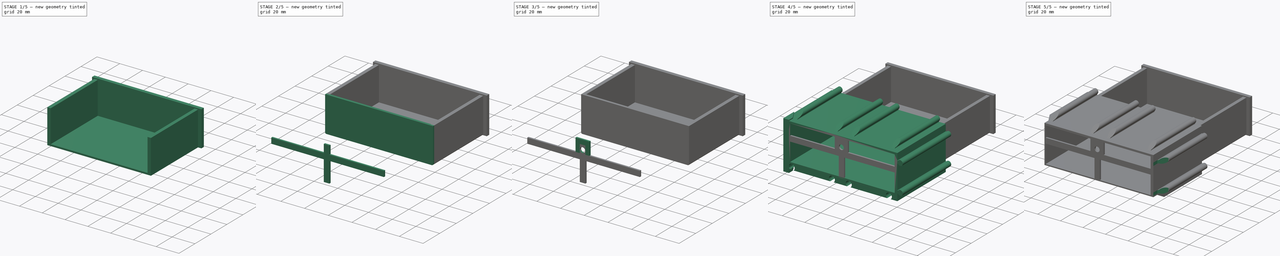
[diagram: build sequence overview — one tinted view per stage of 5, left to right]
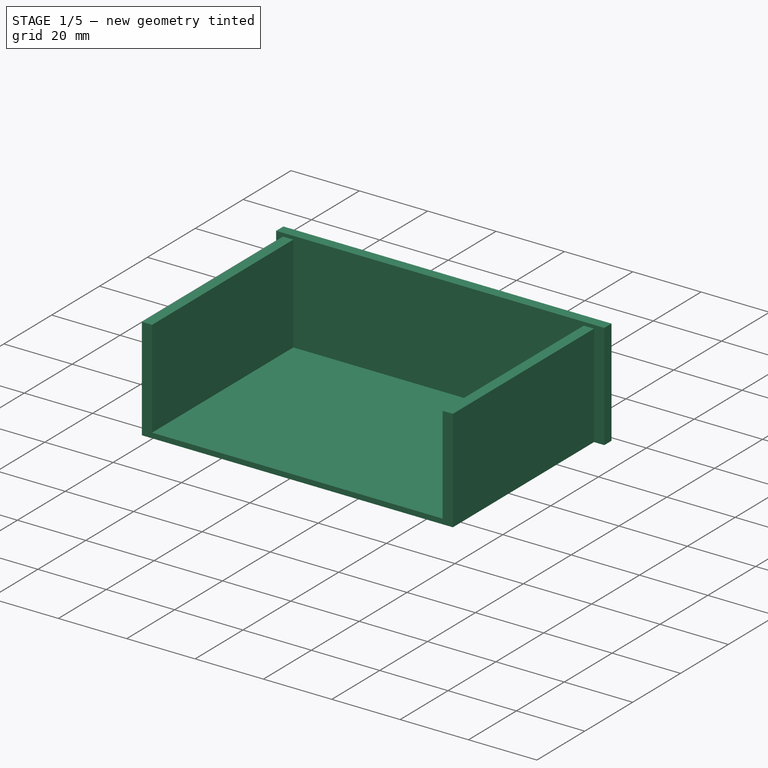
[diagram: stage 1 of 5 — iso view after this stage's code; geometry added in this stage tinted green]
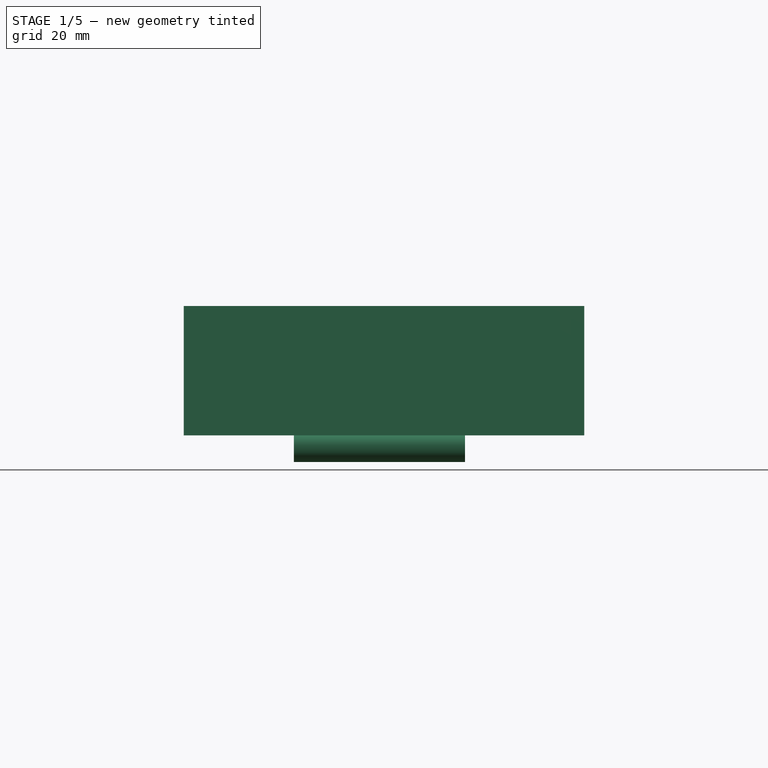
[diagram: stage 1 of 5 — front view after this stage's code; geometry added in this stage tinted green]
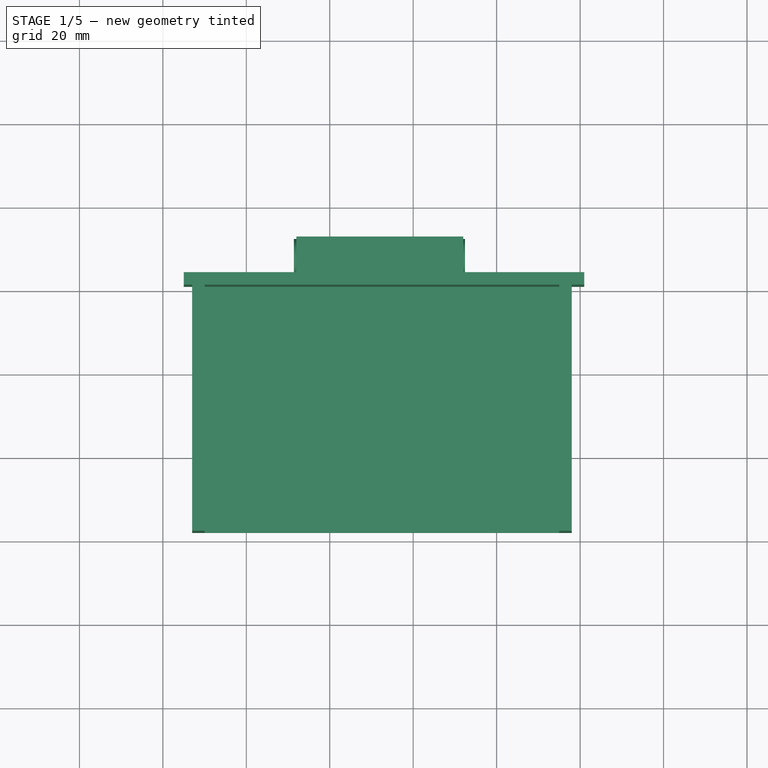
[diagram: stage 1 of 5 — top view after this stage's code; geometry added in this stage tinted green]
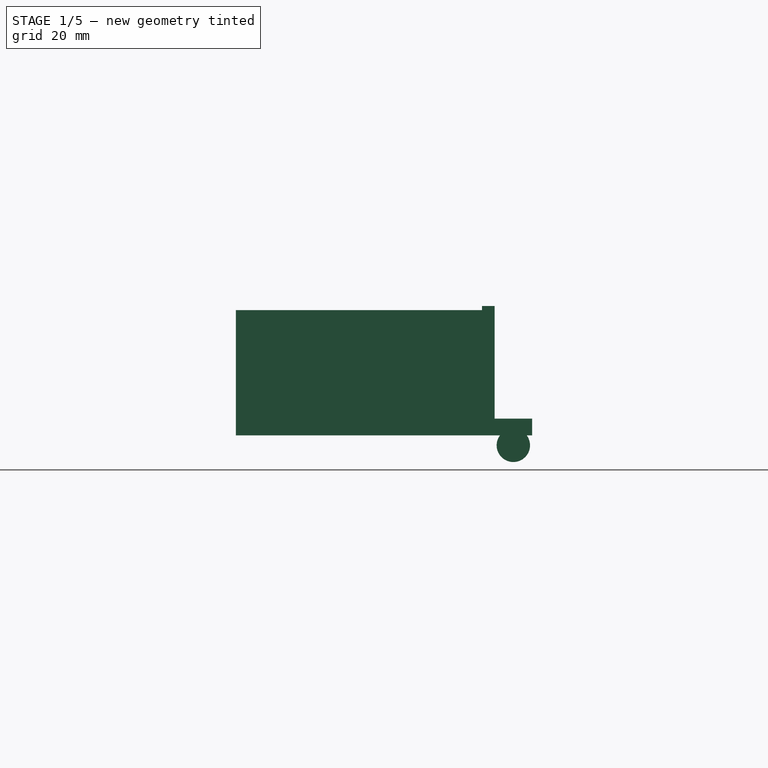
[diagram: stage 1 of 5 — right view after this stage's code; geometry added in this stage tinted green]
FCSTD DOCUMENT  (FreeCAD 0.18R4 (GitTag))
Label: базовый элемент 2x1
License: All rights reserved
LicenseURL: http://en.wikipedia.org/wiki/All_rights_reserved
objects: Part::Box×9, Part::Cut×7, Sketcher::SketchObject×6, Part::Extrusion×6, Part::MultiFuse×4, Part::Cylinder×3, Part::Fillet×1
note: 36 computed .brp shape members not serialized (recipe doc carries the construction recipe); baked Part::Feature solids carry a one-line shape summary decoded from their .brp

FEATURE [Part::Box] Box005  label="Куб005"
  AttacherType = Attacher::AttachEngine3D
  Height = 30
  Length = 3
  Placement = pos=(95,2,7) rot=(0,0,1;0rad)
  Width = 60
FEATURE [Part::Box] Box003  label="Куб003"
  AttacherType = Attacher::AttachEngine3D
  Height = 1.5
  Length = 88
  Placement = pos=(7,2,7) rot=(0,0,1;0rad)
  Width = 60
FEATURE [Part::Box] Box008  label="Куб008"
  AttacherType = Attacher::AttachEngine3D
  Height = 4
  Length = 40
  Placement = pos=(32,63,7) rot=(0,0,1;0rad)
  Width = 10
FEATURE [Part::Box] Box004  label="Куб004"
  AttacherType = Attacher::AttachEngine3D
  Height = 30
  Length = 3
  Placement = pos=(7,2,7) rot=(0,0,1;0rad)
  Width = 60
FEATURE [Part::Box] Box007  label="Куб007"
  AttacherType = Attacher::AttachEngine3D
  Height = 31
  Length = 96
  Placement = pos=(5,61,7) rot=(0,0,1;0rad)
  Width = 3
FEATURE [Part::Cylinder] Cylinder  label="Цилиндр"
  Angle = 360
  AttacherType = Attacher::AttachEngine3D
  Height = 41
  Placement = pos=(31.4,68.5,4.6) rot=(0,1,0;1.5708rad)
  Radius = 4
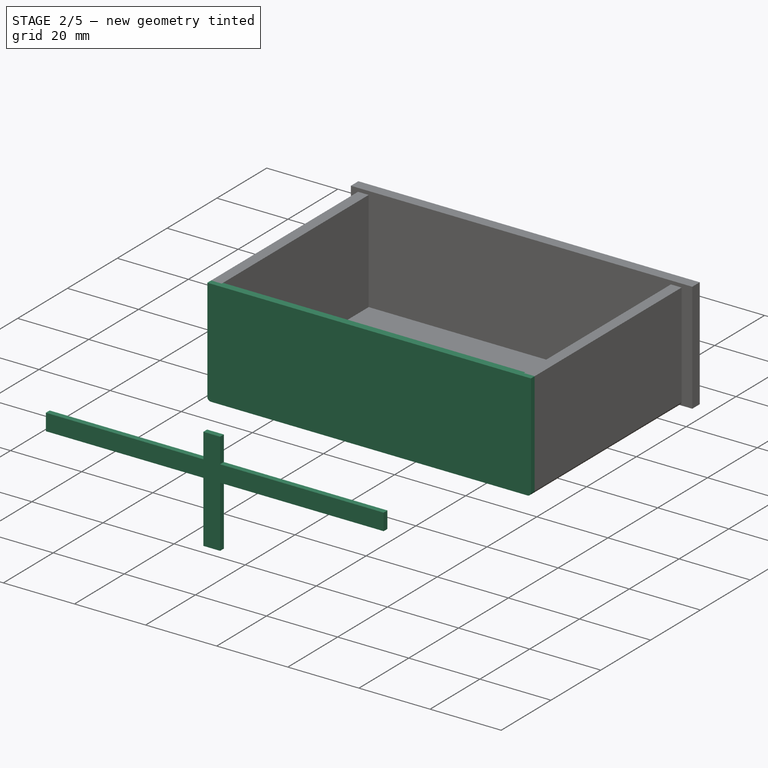
[diagram: stage 2 of 5 — iso view after this stage's code; geometry added in this stage tinted green]
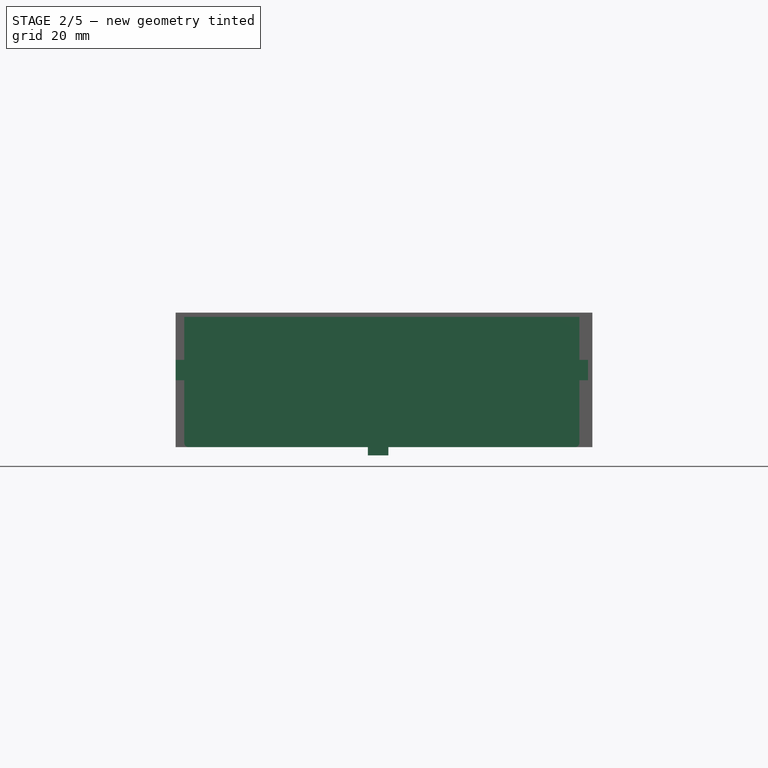
[diagram: stage 2 of 5 — front view after this stage's code; geometry added in this stage tinted green]
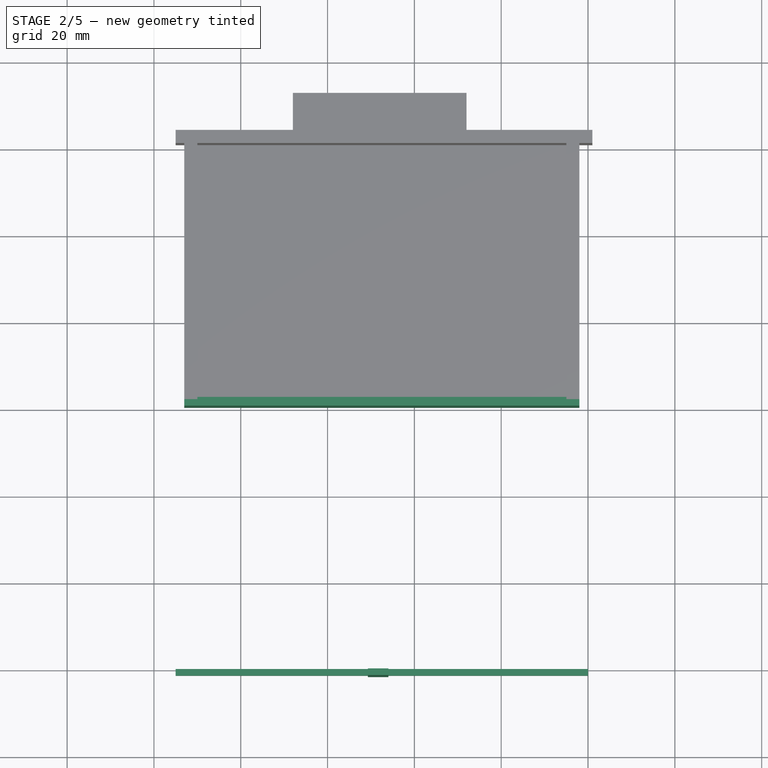
[diagram: stage 2 of 5 — top view after this stage's code; geometry added in this stage tinted green]
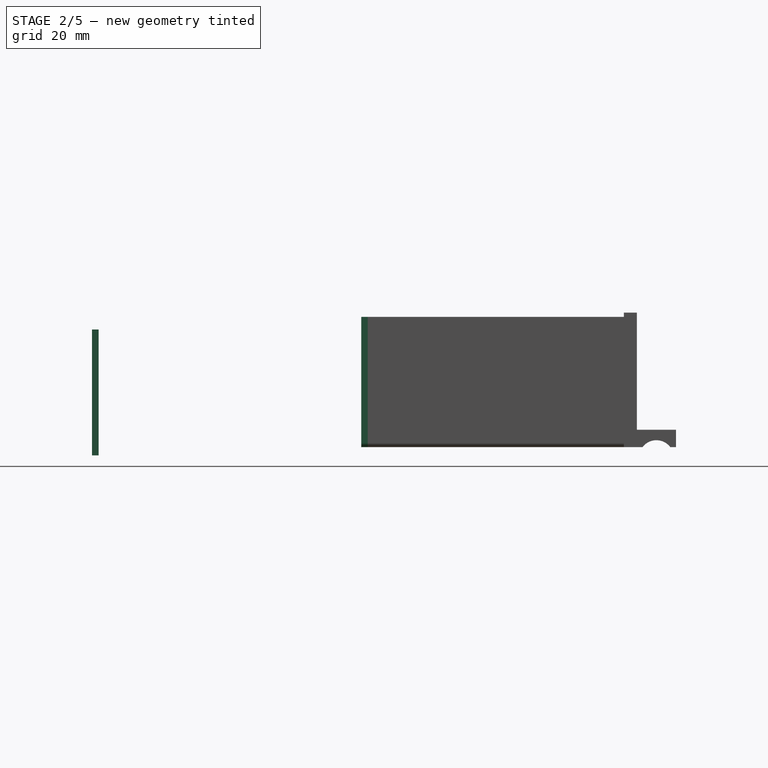
[diagram: stage 2 of 5 — right view after this stage's code; geometry added in this stage tinted green]
FEATURE [Part::Box] Box013  label="Куб013"
  AttacherType = Attacher::AttachEngine3D
  Height = 4.7
  Length = 29
  Placement = pos=(54,-61.5,5.1) rot=(0,-1,0;1.5708rad)
  Width = 1.5
FEATURE [Part::Box] Box014  label="Куб014"
  AttacherType = Attacher::AttachEngine3D
  Height = 4.7
  Length = 95
  Placement = pos=(5,-61.5,22.4) rot=(0,0,1;0rad)
  Width = 1.5
FEATURE [Part::Box] Box006  label="Куб006"
  AttacherType = Attacher::AttachEngine3D
  Height = 30
  Length = 91
  Placement = pos=(7,0.5,7) rot=(0,0,1;0rad)
  Width = 2
FEATURE [Part::MultiFuse] Fusion007
  Shapes = -> [Box006,Box004,Box003,Box005,Box007,Box008]
FEATURE [Part::Fillet] Fillet
  Base = -> Fusion007
  Edges = 6 edges r=1: [Edge4,Edge17,Edge21,Edge35,Edge41,Edge64]
FEATURE [Part::Cut] Cut006
  Base = -> Fillet
  Tool = -> Cylinder
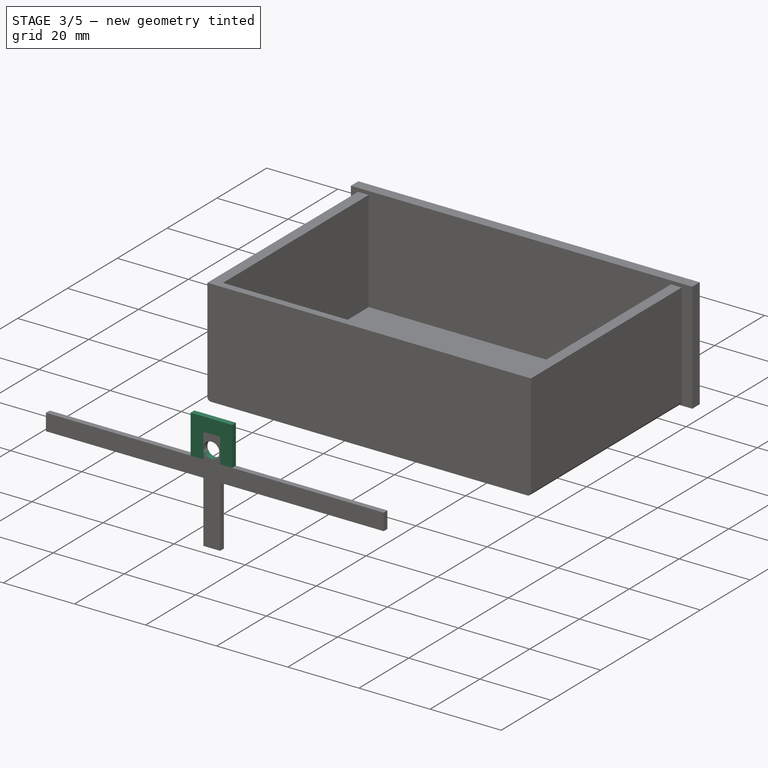
[diagram: stage 3 of 5 — iso view after this stage's code; geometry added in this stage tinted green]
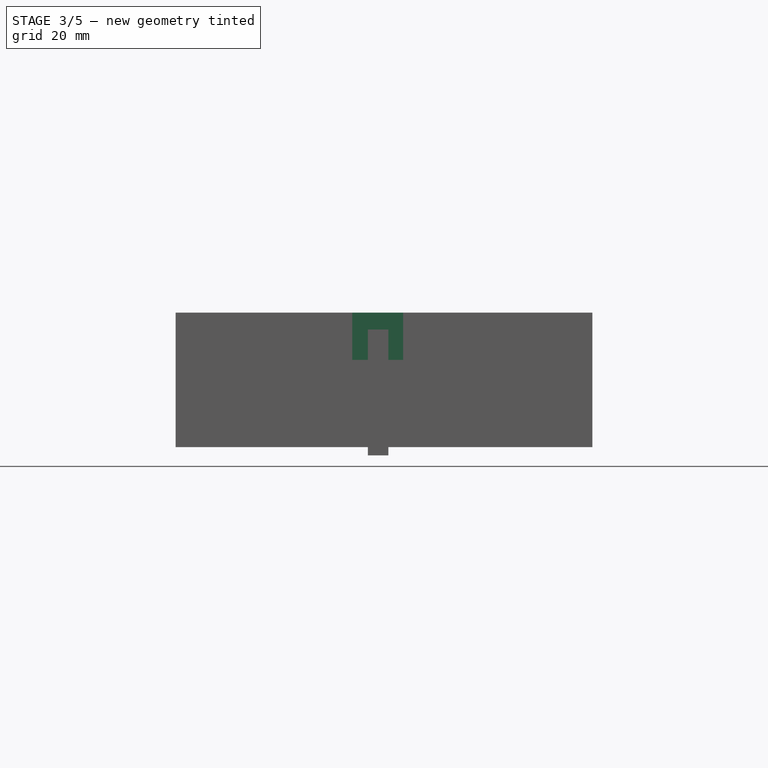
[diagram: stage 3 of 5 — front view after this stage's code; geometry added in this stage tinted green]
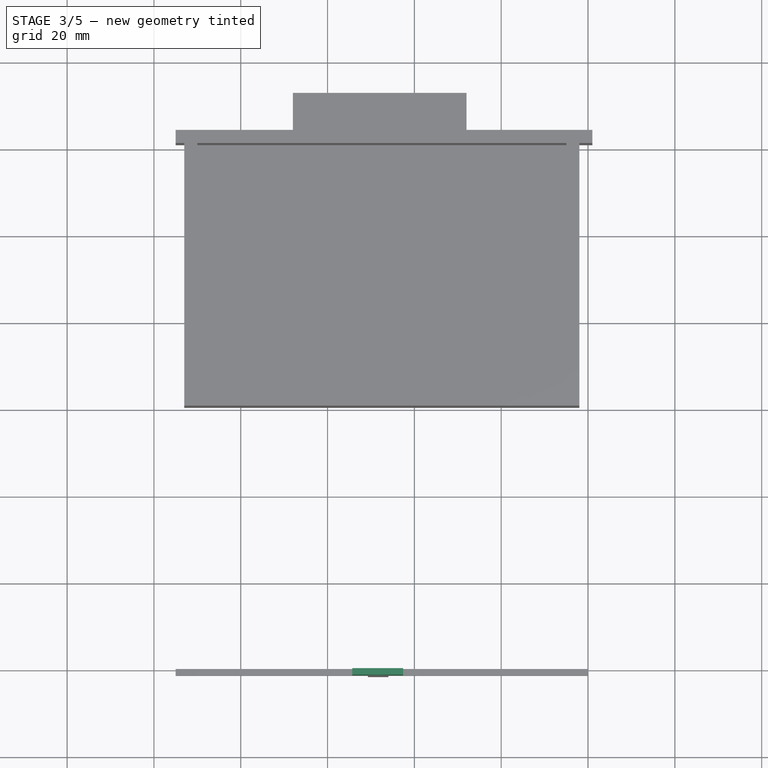
[diagram: stage 3 of 5 — top view after this stage's code; geometry added in this stage tinted green]
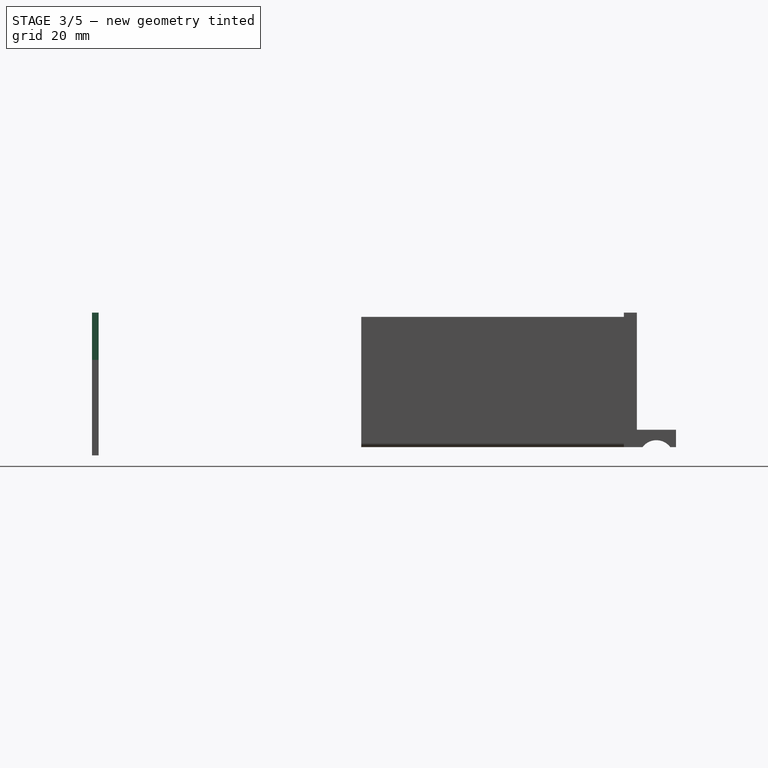
[diagram: stage 3 of 5 — right view after this stage's code; geometry added in this stage tinted green]
FEATURE [Part::Box] Box012  label="Куб012"
  AttacherType = Attacher::AttachEngine3D
  Height = 11.7
  Length = 13
  Placement = pos=(57.4,-61.5,25) rot=(0,-1,0;1.5708rad)
  Width = 1.5
FEATURE [Part::Cylinder] Cylinder004  label="Цилиндр004"
  Angle = 360
  AttacherType = Attacher::AttachEngine3D
  Height = 10
  Placement = pos=(26.2,-4,34) rot=(-1,0,0;1.5708rad)
  Radius = 2.2
FEATURE [Part::Cylinder] Cylinder005  label="Цилиндр005"
  Angle = 360
  AttacherType = Attacher::AttachEngine3D
  Height = 10
  Placement = pos=(26.2,3,34) rot=(-1,0,0;1.5708rad)
  Radius = 6
FEATURE [Part::MultiFuse] Fusion005
  Placement = pos=(25.4,-63,-4) rot=(0,0,1;0rad)
  Shapes = -> [Cylinder004,Cylinder005]
FEATURE [Part::MultiFuse] Fusion
  Shapes = -> [Box013,Box014,Box012]
FEATURE [Part::Cut] Cut005
  Base = -> Fusion
  Tool = -> Fusion005
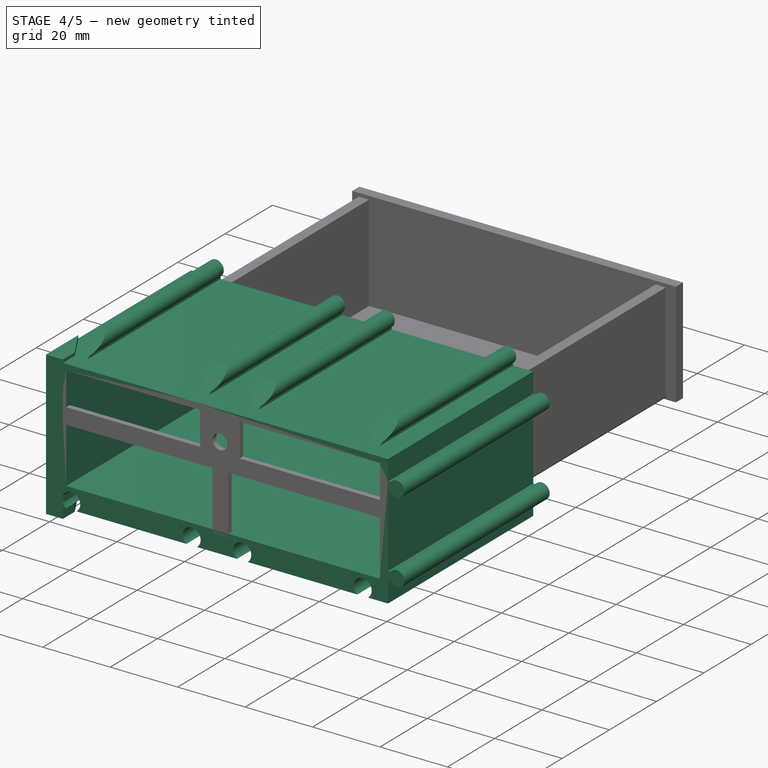
[diagram: stage 4 of 5 — iso view after this stage's code; geometry added in this stage tinted green]
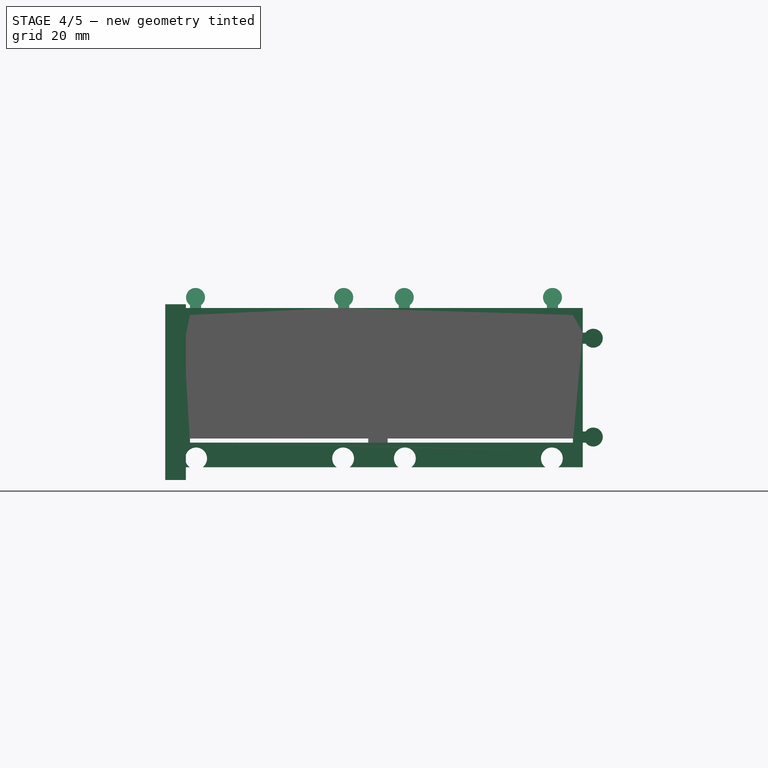
[diagram: stage 4 of 5 — front view after this stage's code; geometry added in this stage tinted green]
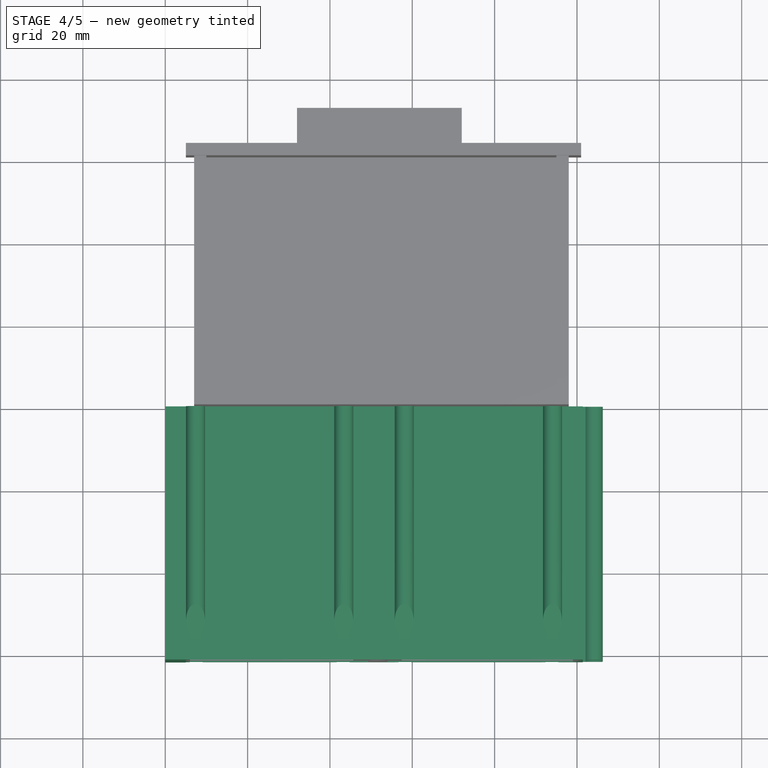
[diagram: stage 4 of 5 — top view after this stage's code; geometry added in this stage tinted green]
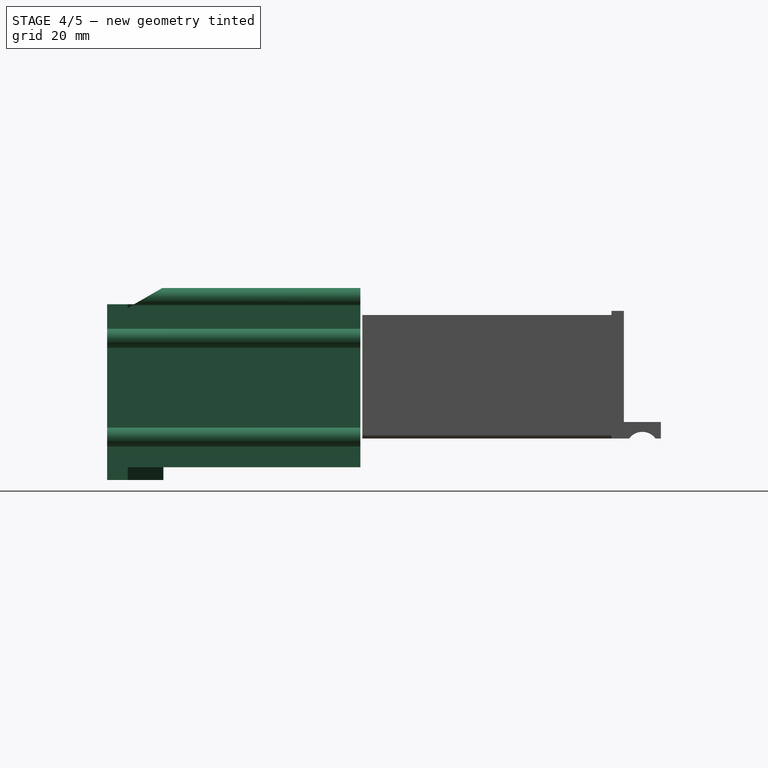
[diagram: stage 4 of 5 — right view after this stage's code; geometry added in this stage tinted green]
FEATURE [Sketcher::SketchObject] Sketch014
  Placement = pos=(0,0,0) rot=(1,0,0;1.5708rad)
  sketch-geometry (42):
    g0: LineSegment StartX=0 StartY=-4e-16 StartZ=0 EndX=0 EndY=5.95 EndZ=0
    g1: LineSegment StartX=0 StartY=9.05 StartZ=0 EndX=0 EndY=29.65 EndZ=0
    g2: LineSegment StartX=0 StartY=-4e-16 StartZ=0 EndX=5.95 EndY=-4e-16 EndZ=0
    g3: ArcOfCircle CenterX=2.14942 CenterY=7.5 CenterZ=0 NormalX=0 NormalY=0 NormalZ=1 AngleXU=0 Radius=2.65 StartAngle=3.76636 EndAngle=8.80001
    g4: ArcOfCircle CenterX=7.5 CenterY=2.14942 CenterZ=0 NormalX=0 NormalY=0 NormalZ=1 AngleXU=0 Radius=2.65 StartAngle=5.33715 EndAngle=10.3708
    g5: LineSegment StartX=9.05 StartY=9e-16 StartZ=0 EndX=41.65 EndY=9e-16 EndZ=0
    g6: ArcOfCircle CenterX=43.2 CenterY=2.14942 CenterZ=0 NormalX=0 NormalY=0 NormalZ=1 AngleXU=0 Radius=2.65 StartAngle=5.33715 EndAngle=10.3708
    g7: LineSegment StartX=44.75 StartY=0 StartZ=0 EndX=50.7 EndY=0 EndZ=0
    g8: LineSegment StartX=50.7 StartY=38.7 StartZ=0 EndX=44.7 EndY=38.7 EndZ=0
    g9: LineSegment StartX=44.7 StartY=38.7 StartZ=0 EndX=44.7 EndY=39.4 EndZ=0
    g10: LineSegment StartX=42 StartY=38.7 StartZ=0 EndX=42 EndY=39.4 EndZ=0
    g11: ArcOfCircle CenterX=43.35 CenterY=41.2621 CenterZ=0 NormalX=0 NormalY=0 NormalZ=1 AngleXU=0 Radius=2.3 StartAngle=5.33968 EndAngle=10.3683
    g12: ArcOfCircle CenterX=2.14942 CenterY=31.2 CenterZ=0 NormalX=0 NormalY=0 NormalZ=1 AngleXU=0 Radius=2.65 StartAngle=3.76636 EndAngle=8.80001
    g13: LineSegment StartX=9e-16 StartY=32.75 StartZ=0 EndX=9e-16 EndY=38.7 EndZ=0
    g14: LineSegment StartX=9e-16 StartY=38.7 StartZ=0 EndX=6 EndY=38.7 EndZ=0
    g15: LineSegment StartX=6 StartY=38.7 StartZ=0 EndX=6 EndY=39.4 EndZ=0
    g16: LineSegment StartX=8.7 StartY=38.7 StartZ=0 EndX=8.7 EndY=39.4 EndZ=0
    g17: ArcOfCircle CenterX=7.35 CenterY=41.2621 CenterZ=0 NormalX=0 NormalY=0 NormalZ=1 AngleXU=0 Radius=2.3 StartAngle=5.33968 EndAngle=10.3683
    g18: LineSegment StartX=8.7 StartY=38.7 StartZ=0 EndX=42 EndY=38.7 EndZ=0
    g19: LineSegment StartX=50.7 StartY=0 StartZ=0 EndX=56.65 EndY=0 EndZ=0
    g20: ArcOfCircle CenterX=58.2 CenterY=2.14942 CenterZ=0 NormalX=0 NormalY=0 NormalZ=1 AngleXU=0 Radius=2.65 StartAngle=5.33715 EndAngle=10.3708
    g21: LineSegment StartX=59.75 StartY=0 StartZ=0 EndX=92.35 EndY=0 EndZ=0
    g22: ArcOfCircle CenterX=93.9 CenterY=2.14942 CenterZ=0 NormalX=0 NormalY=0 NormalZ=1 AngleXU=0 Radius=2.65 StartAngle=5.33715 EndAngle=10.3708
    g23: LineSegment StartX=95.45 StartY=4e-16 StartZ=0 EndX=101.4 EndY=4e-16 EndZ=0
    g24: LineSegment StartX=101.4 StartY=6 StartZ=0 EndX=102.1 EndY=6 EndZ=0
    g25: ArcOfCircle CenterX=103.962 CenterY=7.35 CenterZ=0 NormalX=0 NormalY=0 NormalZ=1 AngleXU=0 Radius=2.3 StartAngle=3.76889 EndAngle=8.79748
    g26: LineSegment StartX=102.1 StartY=8.7 StartZ=0 EndX=101.4 EndY=8.7 EndZ=0
    g27: LineSegment StartX=101.4 StartY=8.7 StartZ=0 EndX=101.4 EndY=30 EndZ=0
    g28: LineSegment StartX=101.4 StartY=4e-16 StartZ=0 EndX=101.4 EndY=6 EndZ=0
    g29: LineSegment StartX=101.4 StartY=30 StartZ=0 EndX=102.1 EndY=30 EndZ=0
    g30: ArcOfCircle CenterX=103.962 CenterY=31.35 CenterZ=0 NormalX=0 NormalY=0 NormalZ=1 AngleXU=0 Radius=2.3 StartAngle=3.76889 EndAngle=8.79748
    g31: LineSegment StartX=102.1 StartY=32.7 StartZ=0 EndX=101.4 EndY=32.7 EndZ=0
    g32: LineSegment StartX=101.4 StartY=32.7 StartZ=0 EndX=101.4 EndY=38.7 EndZ=0
    g33: LineSegment StartX=50.7 StartY=38.7 StartZ=0 EndX=56.7 EndY=38.7 EndZ=0
    g34: LineSegment StartX=56.7 StartY=38.7 StartZ=0 EndX=56.7 EndY=39.4 EndZ=0
    g35: ArcOfCircle CenterX=58.05 CenterY=41.2621 CenterZ=0 NormalX=0 NormalY=0 NormalZ=1 AngleXU=0 Radius=2.3 StartAngle=5.33968 EndAngle=10.3683
    g36: LineSegment StartX=59.4 StartY=39.4 StartZ=0 EndX=59.4 EndY=38.7 EndZ=0
    g37: LineSegment StartX=59.4 StartY=38.7 StartZ=0 EndX=92.7 EndY=38.7 EndZ=0
    g38: LineSegment StartX=101.4 StartY=38.7 StartZ=0 EndX=95.4 EndY=38.7 EndZ=0
    g39: LineSegment StartX=95.4 StartY=38.7 StartZ=0 EndX=95.4 EndY=39.4 EndZ=0
    g40: ArcOfCircle CenterX=94.05 CenterY=41.2621 CenterZ=0 NormalX=0 NormalY=0 NormalZ=1 AngleXU=0 Radius=2.3 StartAngle=5.33968 EndAngle=10.3683
    g41: LineSegment StartX=92.7 StartY=39.4 StartZ=0 EndX=92.7 EndY=38.7 EndZ=0
  constraints (136):
    c: Vertical(g0)
    c: DistanceY(g0,g0) = 5.95
    c: Coincident(g0,g-1)
    c: Vertical(g1)
    c: DistanceY(g1,g1) = 20.6
    c: Horizontal(g2)
    c: Coincident(g2,g0)
    c: Equal(g2,g0)
    c: DistanceX(g1) = 0
    c: Radius(g3) = 2.65
    c: DistanceY(g0,g1) = 3.1
    c: DistanceY(g2,g5) = 0
    c: Radius(g4) = 2.65
    c: Horizontal(g5)
    c: DistanceX(g2,g5) = 3.1
    c: DistanceX(g5,g5) = 32.6
    c: DistanceX(g5,g7) = 3.1
    c: DistanceY(g5,g7) = 0
    c: Radius(g6) = 2.65
    c: Horizontal(g7)
    c: Equal(g7,g2)
    c: Horizontal(g8)
    c: Vertical(g9)
    c: Coincident(g8,g9)
    c: Vertical(g10)
    c: Equal(g10,g9)
    c: DistanceY(g8,g10) = 0
    c: DistanceX(g10,g9) = 2.7
    c: Coincident(g11,g9)
    c: Coincident(g11,g10)
    c: Radius(g11) = 2.3
    c: DistanceX(g1,g13) = 0
    c: DistanceY(g12,g12) = 3.1
    c: Radius(g12) = 2.65
    c: Vertical(g13)
    c: Equal(g13,g0)
    c: Horizontal(g14)
    c: Coincident(g14,g13)
    c: Equal(g14,g8)
    c: Vertical(g15)
    c: Vertical(g16)
    c: Coincident(g15,g14)
    c: Equal(g15,g16)
    c: Equal(g15,g10)
    c: DistanceY(g14,g16) = 0
    c: DistanceX(g15,g16) = 2.7
    c: Coincident(g17,g15)
    c: Coincident(g17,g16)
    c: Radius(g17) = 2.3
    c: Coincident(g18,g16)
    c: Coincident(g18,g10)
    c: Coincident(g6,g5)
    c: Coincident(g6,g7)
    c: Coincident(g4,g5)
    c: Coincident(g4,g2)
    c: Coincident(g3,g1)
    c: Coincident(g3,g0)
    c: Coincident(g12,g1)
    c: Coincident(g12,g13)
    c: Horizontal(g19)
    c: Equal(g19,g2)
    c: Coincident(g19,g7)
    c: Equal(g6,g20) = 2.65
    c: Coincident(g20,g19)
    c: DistanceX(g19,g20) = 3.1
    c: DistanceY(g19,g20) = 0
    c: Horizontal(g21)
    c: Coincident(g21,g20)
    c: Equal(g21,g5)
    c: Coincident(g22,g21)
    c: DistanceX(g21,g22) = 3.1
    c: DistanceY(g21,g22) = 0
    c: Radius(g22) = 2.65
    c: Horizontal(g23)
    c: Coincident(g23,g22)
    c: Equal(g23,g7)
    c: Horizontal(g24)
    c: DistanceX(g24,g24) = 0.7
    c: Coincident(g25,g24)
    c: DistanceX(g25,g24) = 0
    c: Horizontal(g26)
    c: Coincident(g26,g25)
    c: Equal(g26,g24)
    c: Vertical(g27)
    c: DistanceY(g27,g27) = 21.3
    c: Vertical(g28)
    c: DistanceY(g28,g28) = 6
    c: Coincident(g28,g23)
    c: Coincident(g28,g24)
    c: DistanceY(g24,g25) = 2.7
    c: Coincident(g27,g26)
    c: Horizontal(g29)
    c: Equal(g29,g24)
    c: Coincident(g29,g27)
    c: DistanceY(g30,g30) = 2.7
    c: DistanceX(g30,g30) = 0
    c: Horizontal(g31)
    c: Coincident(g31,g30)
    c: Equal(g31,g24)
    c: Vertical(g32)
    c: Coincident(g32,g31)
    c: Equal(g32,g28)
    c: Coincident(g30,g29)
    c: DistanceX(g8,g8) = 6
    c: Horizontal(g33)
    c: DistanceX(g8) = 50.7
    c: DistanceY(g8) = 38.7
    c: Coincident(g33,g8)
    c: Equal(g33,g8)
    c: Vertical(g34)
    c: Coincident(g34,g33)
    c: Equal(g34,g24)
    c: Equal(g11,g35) = 2.3
    c: Coincident(g34,g35)
    c: DistanceX(g34,g35) = 2.7
    c: DistanceY(g34,g35) = 0
    c: Coincident(g36,g35)
    c: Vertical(g36)
    c: Equal(g36,g24)
    c: Horizontal(g37)
    c: Coincident(g36,g37)
    c: Horizontal(g38)
    c: Coincident(g38,g32)
    c: Equal(g38,g28)
    c: Vertical(g39)
    c: Coincident(g39,g38)
    c: Equal(g39,g24)
    c: Coincident(g39,g40)
    c: DistanceX(g40,g39) = 2.7
    c: Vertical(g41)
    c: Coincident(g41,g40)
    c: Equal(g41,g24)
    c: Coincident(g37,g41)
    c: Radius(g25) = 2.3
    c: Equal(g25,g30)
    c: Radius(g40) = 2.3
FEATURE [Part::Extrusion] Extrude  label="baseUnit"
  Base = -> Sketch014
  Dir = (0,-1,2e-16)
  DirMode = 2
  FaceMakerClass = Part::FaceMakerBullseye
  LengthFwd = 61.5
  LengthRev = 0
  Solid = true
  Symmetric = false
FEATURE [Sketcher::SketchObject] Sketch
  Placement = pos=(0,0,0) rot=(1,0,0;1.5708rad)
  sketch-geometry (4):
    g0: LineSegment StartX=6 StartY=37 StartZ=0 EndX=6 EndY=6 EndZ=0
    g1: LineSegment StartX=6 StartY=37 StartZ=0 EndX=99 EndY=37 EndZ=0
    g2: LineSegment StartX=99 StartY=37 StartZ=0 EndX=99 EndY=6 EndZ=0
    g3: LineSegment StartX=6 StartY=6 StartZ=0 EndX=99 EndY=6 EndZ=0
  constraints (12):
    c: Vertical(g0)
    c: DistanceX(g0) = 6
    c: DistanceY(g0) = 6
    c: DistanceY(g0,g0) = 31
    c: Horizontal(g1)
    c: Coincident(g1,g0)
    c: DistanceX(g1,g1) = 93
    c: Vertical(g2)
    c: Equal(g2,g0)
    c: Coincident(g2,g1)
    c: Coincident(g3,g2)
    c: Coincident(g3,g0)
FEATURE [Part::Extrusion] Extrude013  label="inside"
  Base = -> Sketch
  Dir = (0,-1,0)
  DirMode = 2
  FaceMakerClass = Part::FaceMakerBullseye
  LengthFwd = 65
  LengthRev = 0
  Solid = true
  Symmetric = false
FEATURE [Part::Cut] Cut  label="ZAGOTOVKA"
  Base = -> Extrude
  Tool = -> Extrude013
FEATURE [Sketcher::SketchObject] Sketch010
  Placement = pos=(0,0,0) rot=(0.57735,0.57735,0.57735;2.0944rad)
  sketch-geometry (4):
    g0: LineSegment StartX=0 StartY=38.7 StartZ=0 EndX=5 EndY=38.7 EndZ=0
    g1: LineSegment StartX=5 StartY=38.7 StartZ=0 EndX=13.6603 EndY=43.7 EndZ=0
    g2: LineSegment StartX=0 StartY=38.7 StartZ=0 EndX=0 EndY=43.7 EndZ=0
    g3: LineSegment StartX=0 StartY=43.7 StartZ=0 EndX=13.6603 EndY=43.7 EndZ=0
  constraints (12):
    c: DistanceX(g-1,g0) = 0
    c: Horizontal(g0)
    c: DistanceY(g-1,g0) = 38.7
    c: DistanceX(g0,g0) = 5
    c: Coincident(g1,g0)
    c: Angle(g1,g0) = 2.61799
    c: Vertical(g2)
    c: Coincident(g2,g0)
    c: Horizontal(g3)
    c: Coincident(g3,g2)
    c: Coincident(g3,g1)
    c: DistanceY(g2,g2) = 5
FEATURE [Part::Extrusion] Extrude012
  Base = -> Sketch010
  Dir = (1,0,0)
  DirMode = 0
  FaceMakerClass = Part::FaceMakerBullseye
  LengthFwd = 114.7
  LengthRev = 0
  Placement = pos=(0,-61.5,0) rot=(0,0,1;0rad)
  Solid = true
  Symmetric = false
FEATURE [Sketcher::SketchObject] Sketch015
  Placement = pos=(0,0,0) rot=(0.57735,0.57735,0.57735;2.0944rad)
  sketch-geometry (4):
    g0: LineSegment StartX=0 StartY=38.7 StartZ=0 EndX=5 EndY=38.7 EndZ=0
    g1: LineSegment StartX=5 StartY=38.7 StartZ=0 EndX=13.6603 EndY=43.7 EndZ=0
    g2: LineSegment StartX=0 StartY=38.7 StartZ=0 EndX=0 EndY=43.7 EndZ=0
    g3: LineSegment StartX=0 StartY=43.7 StartZ=0 EndX=13.6603 EndY=43.7 EndZ=0
  constraints (12):
    c: DistanceX(g-1,g0) = 0
    c: Horizontal(g0)
    c: DistanceY(g-1,g0) = 38.7
    c: DistanceX(g0,g0) = 5
    c: Coincident(g1,g0)
    c: Angle(g1,g0) = 2.61799
    c: Vertical(g2)
    c: Coincident(g2,g0)
    c: Horizontal(g3)
    c: Coincident(g3,g2)
    c: Coincident(g3,g1)
    c: DistanceY(g2,g2) = 5
FEATURE [Part::Extrusion] Extrude015
  Base = -> Sketch015
  Dir = (1,0,0)
  DirMode = 0
  FaceMakerClass = Part::FaceMakerBullseye
  LengthFwd = 42.7
  LengthRev = 0
  Placement = pos=(43.7,-61.5,-3.1) rot=(0,-1,0;1.5708rad)
  Solid = true
  Symmetric = false
FEATURE [Part::Cut] Cut001
  Base = -> Cut
  Tool = -> Extrude012
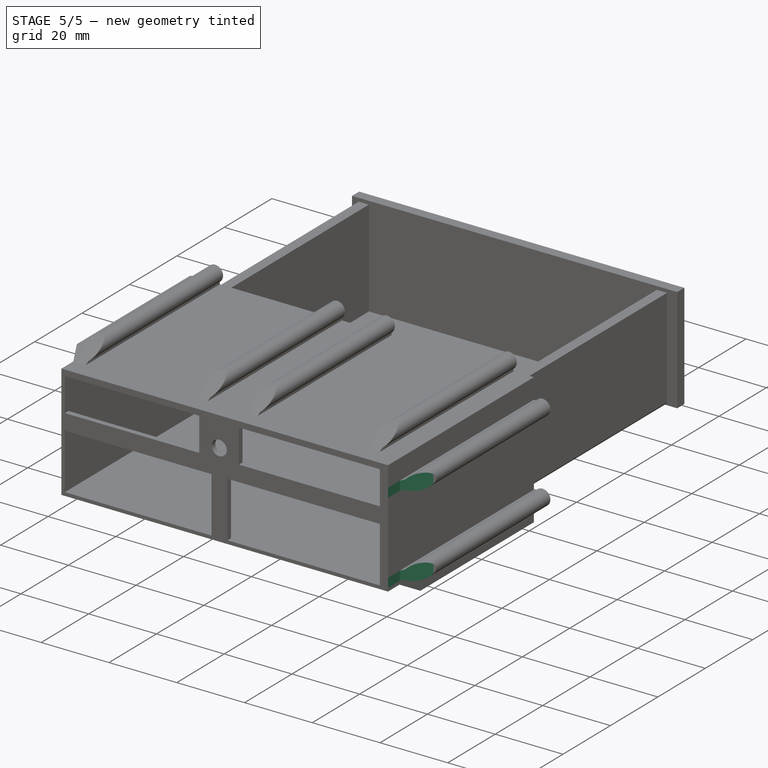
[diagram: stage 5 of 5 — iso view after this stage's code; geometry added in this stage tinted green]
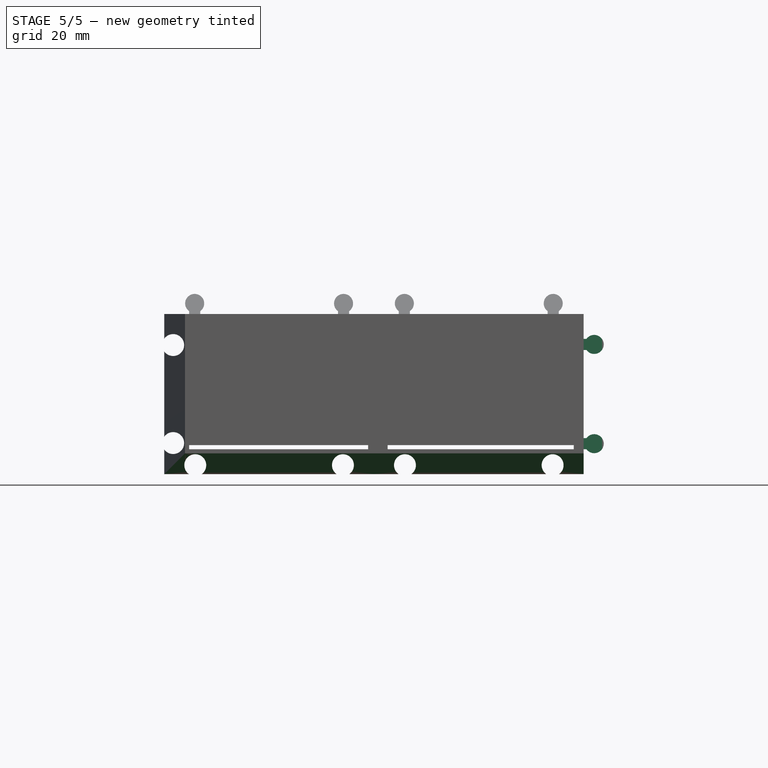
[diagram: stage 5 of 5 — front view after this stage's code; geometry added in this stage tinted green]
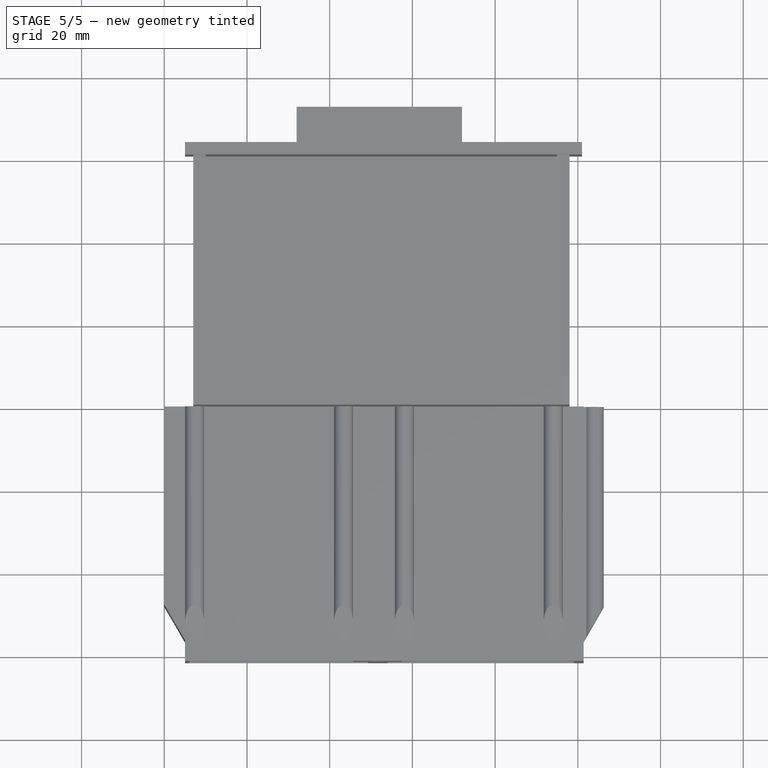
[diagram: stage 5 of 5 — top view after this stage's code; geometry added in this stage tinted green]
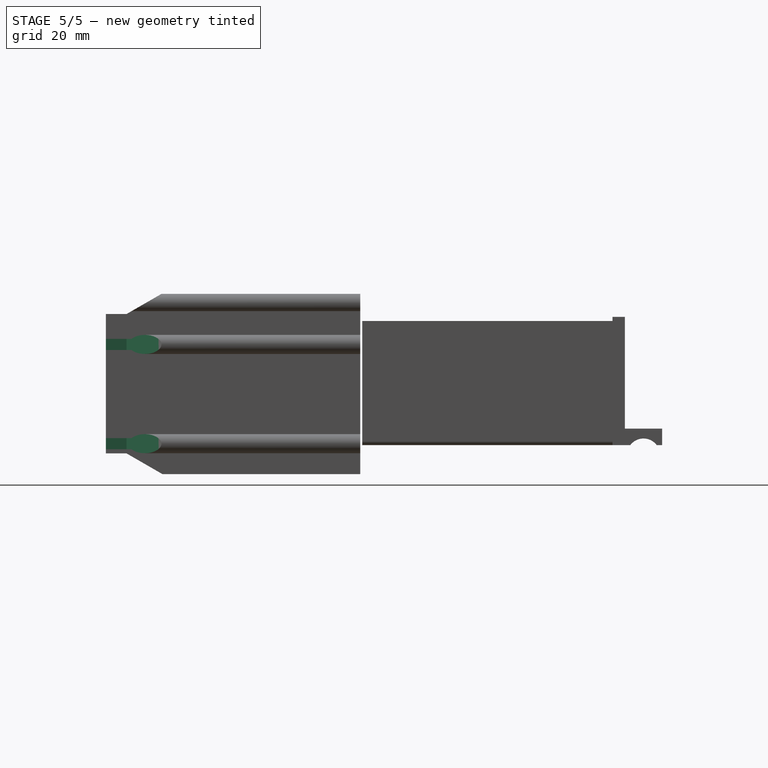
[diagram: stage 5 of 5 — right view after this stage's code; geometry added in this stage tinted green]
FEATURE [Sketcher::SketchObject] Sketch009
  Placement = pos=(0,0,0) rot=(0.57735,0.57735,0.57735;2.0944rad)
  sketch-geometry (4):
    g0: LineSegment StartX=0 StartY=38.7 StartZ=0 EndX=5 EndY=38.7 EndZ=0
    g1: LineSegment StartX=5 StartY=38.7 StartZ=0 EndX=13.6603 EndY=43.7 EndZ=0
    g2: LineSegment StartX=0 StartY=38.7 StartZ=0 EndX=0 EndY=43.7 EndZ=0
    g3: LineSegment StartX=0 StartY=43.7 StartZ=0 EndX=13.6603 EndY=43.7 EndZ=0
  constraints (12):
    c: DistanceX(g-1,g0) = 0
    c: Horizontal(g0)
    c: DistanceY(g-1,g0) = 38.7
    c: DistanceX(g0,g0) = 5
    c: Coincident(g1,g0)
    c: Angle(g1,g0) = 2.61799
    c: Vertical(g2)
    c: Coincident(g2,g0)
    c: Horizontal(g3)
    c: Coincident(g3,g2)
    c: Coincident(g3,g1)
    c: DistanceY(g2,g2) = 5
FEATURE [Part::Extrusion] Extrude009
  Base = -> Sketch009
  Dir = (1,0,0)
  DirMode = 0
  FaceMakerClass = Part::FaceMakerBullseye
  LengthFwd = 48.7
  LengthRev = 0
  Placement = pos=(62.7,-61.5,41) rot=(0,1,0;1.5708rad)
  Solid = true
  Symmetric = false
FEATURE [Sketcher::SketchObject] Sketch013
  Placement = pos=(0,0,0) rot=(0.57735,0.57735,0.57735;2.0944rad)
  sketch-geometry (4):
    g0: LineSegment StartX=0 StartY=38.7 StartZ=0 EndX=5 EndY=38.7 EndZ=0
    g1: LineSegment StartX=5 StartY=38.7 StartZ=0 EndX=13.6603 EndY=43.7 EndZ=0
    g2: LineSegment StartX=0 StartY=38.7 StartZ=0 EndX=0 EndY=43.7 EndZ=0
    g3: LineSegment StartX=0 StartY=43.7 StartZ=0 EndX=13.6603 EndY=43.7 EndZ=0
  constraints (12):
    c: DistanceX(g-1,g0) = 0
    c: Horizontal(g0)
    c: DistanceY(g-1,g0) = 38.7
    c: DistanceX(g0,g0) = 5
    c: Coincident(g1,g0)
    c: Angle(g1,g0) = 2.61799
    c: Vertical(g2)
    c: Coincident(g2,g0)
    c: Horizontal(g3)
    c: Coincident(g3,g2)
    c: Coincident(g3,g1)
    c: DistanceY(g2,g2) = 5
FEATURE [Part::Extrusion] Extrude014
  Base = -> Sketch013
  Dir = (1,0,0)
  DirMode = 0
  FaceMakerClass = Part::FaceMakerBullseye
  LengthFwd = 110
  LengthRev = 0
  Placement = pos=(108.4,-61.5,43.7) rot=(0,1,0;3.14159rad)
  Solid = true
  Symmetric = false
FEATURE [Part::Cut] Cut002
  Base = -> Cut001
  Tool = -> Extrude015
FEATURE [Part::Cut] Cut003
  Base = -> Cut002
  Tool = -> Extrude014
FEATURE [Part::Cut] Cut004
  Base = -> Cut003
  Tool = -> Extrude009
FEATURE [Part::MultiFuse] Fusion006
  Shapes = -> [Cut004,Cut005]
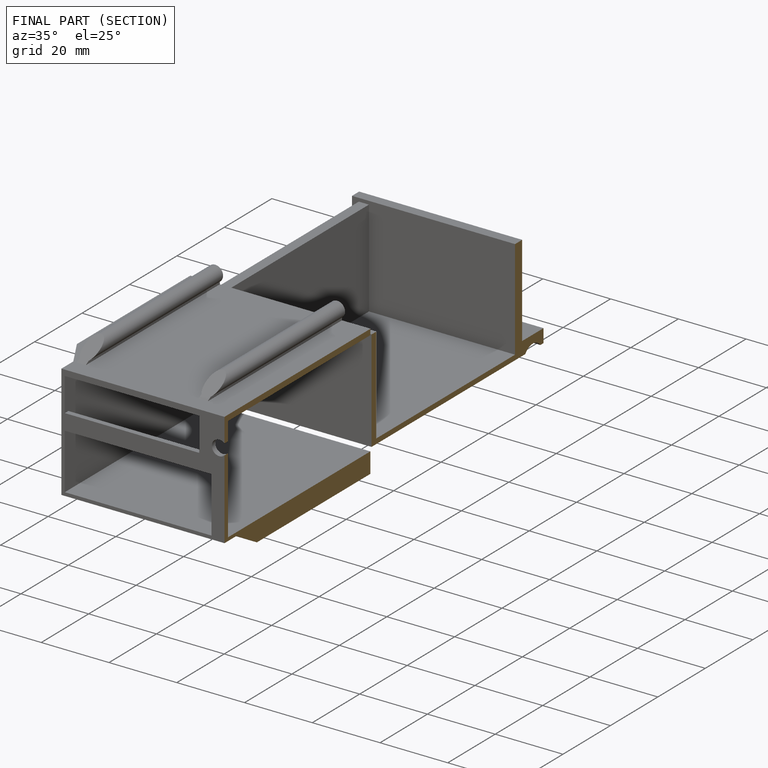
[diagram: finished part — half-section view (interior)]
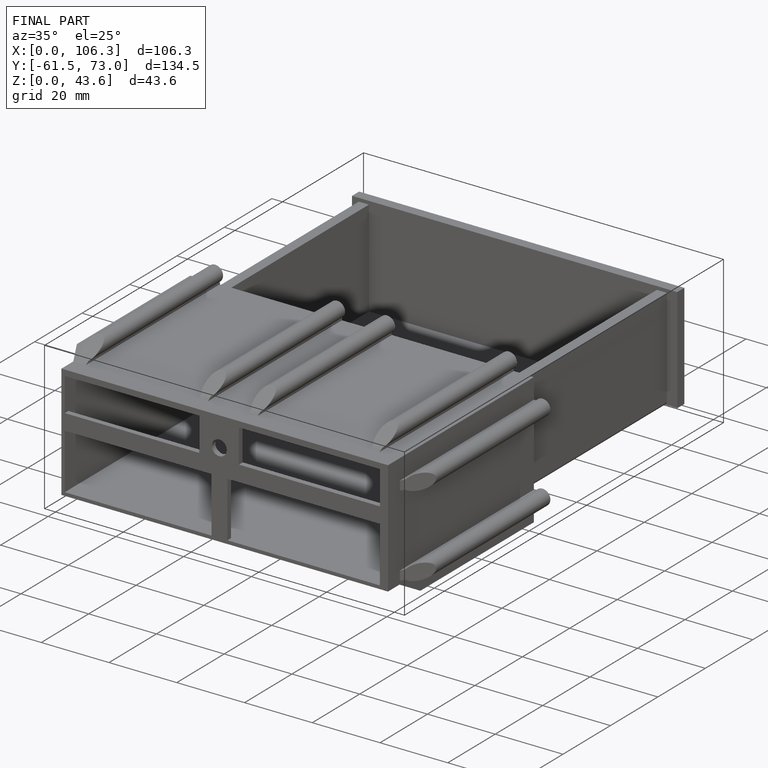
[diagram: finished part — iso view with bounding-box wireframe]
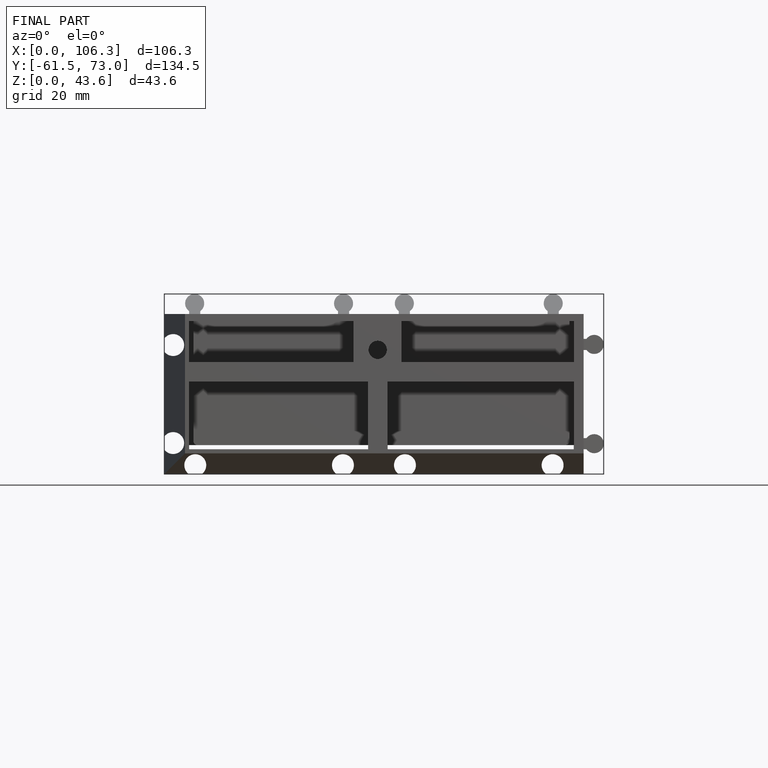
[diagram: finished part — front view with bounding-box wireframe]
